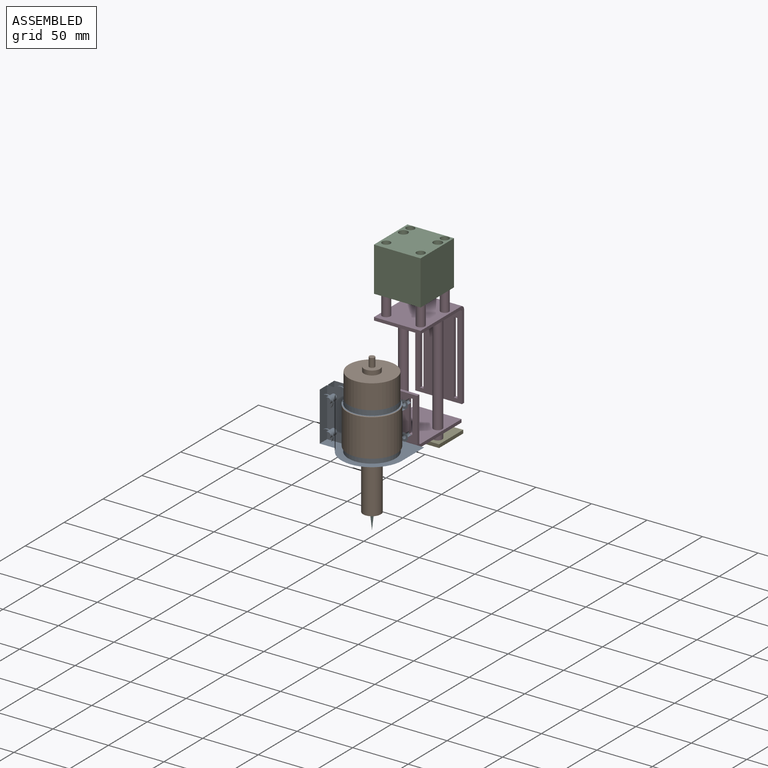
[diagram: assembled view]
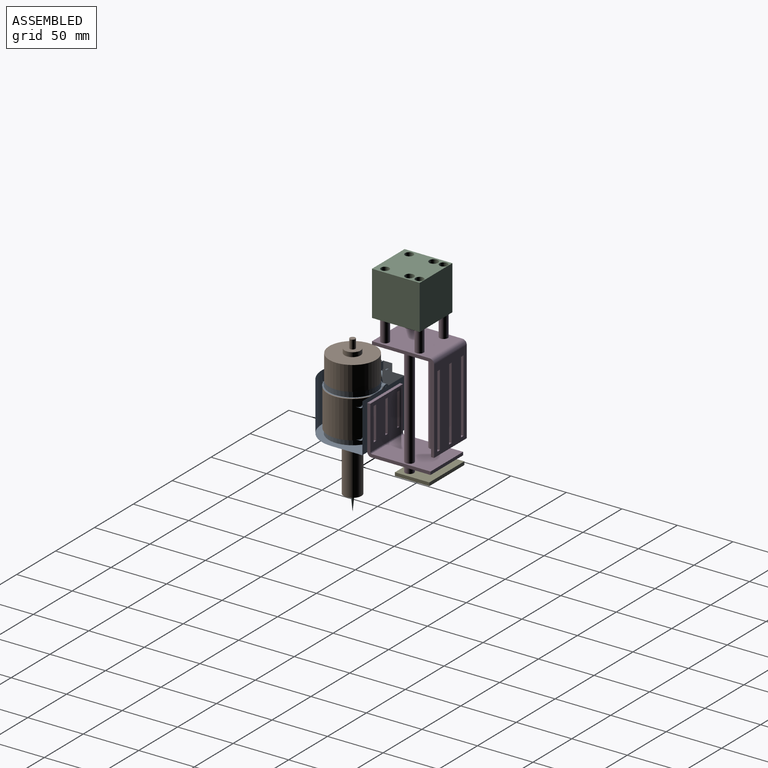
[diagram: assembled view, second angle]
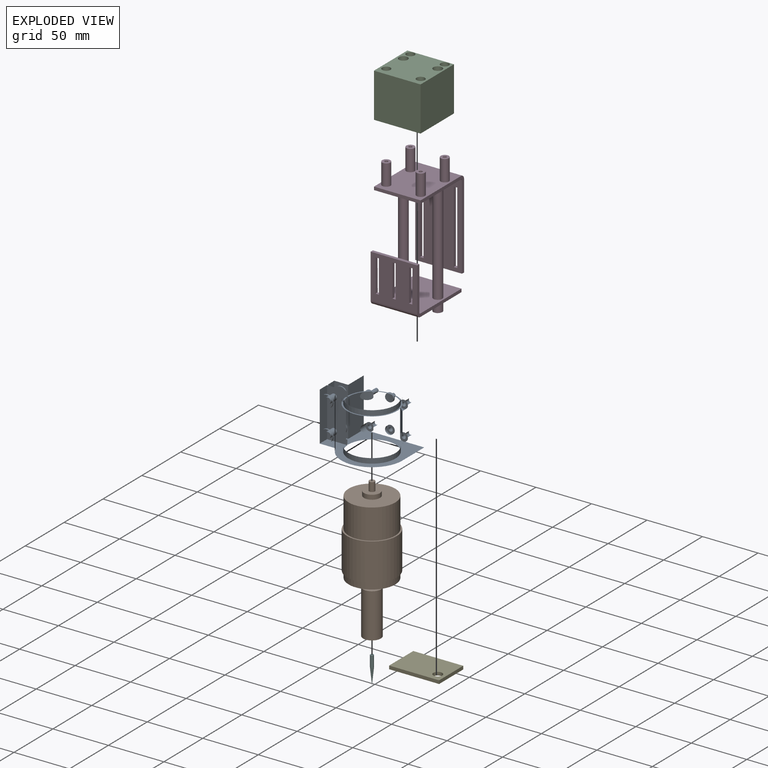
[diagram: exploded view]
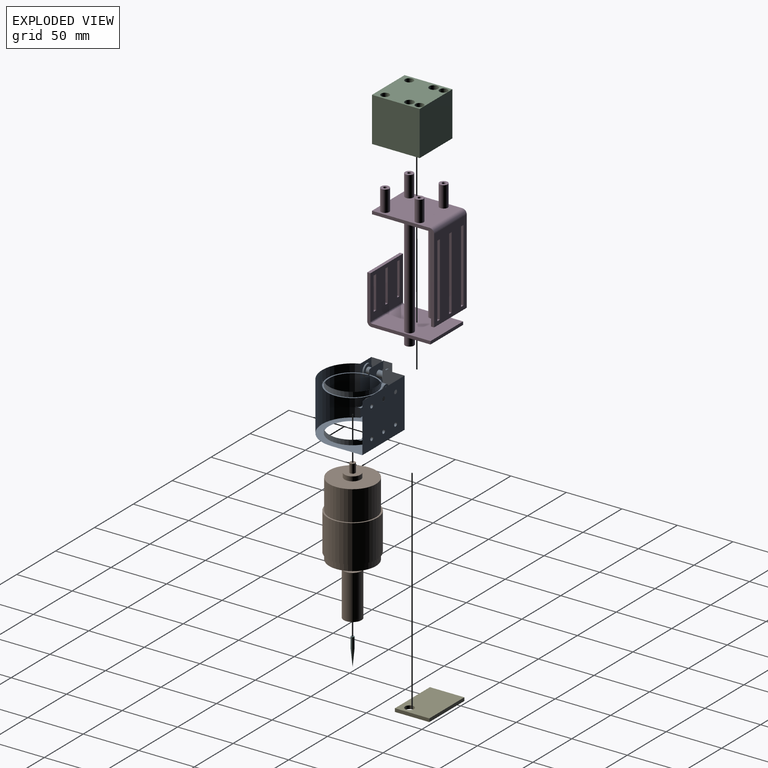
[diagram: exploded view, second angle]
ASSEMBLY  parts=6 mates=5
PART A: 49 faces, bbox 67x55.5x44 mm
  f0: cylinder r=22.5mm len=45mm, axis (0,0,-1), area -4954mm2, adj f1,f2,f3,f4,f5,f6,f7,f8
  f1: plane 7.5x7.05mm, normal (0,1,0), area 33.5mm2, adj f0,f2,f15
  f2: cylinder r=3.75mm len=7.5mm, axis (0,-1,0), area 70.8mm2, adj f0,f1
  f3: plane 7.5x7.05mm, normal (0,1,0), area 33.5mm2, adj f0,f4,f16
  f4: cylinder r=3.75mm len=7.5mm, axis (0,-1,0), area 70.8mm2, adj f0,f3
  f5: cylinder r=3.75mm len=7.5mm, axis (0,-1,0), area 39mm2, adj f0,f17
  f6: cylinder r=3.75mm len=7.5mm, axis (0,-1,0), area 70.7mm2, adj f0,f7
  f7: plane 7.5x7.05mm, normal (0,-1,0), area 33.5mm2, adj f0,f6,f18
  f8: cylinder r=3.75mm len=7.5mm, axis (0,-1,0), area 39mm2, adj f0,f19
  f9: cylinder r=3.75mm len=7.5mm, axis (0,-1,0), area 70.8mm2, adj f0,f10
  f10: plane 7.5x7.05mm, normal (0,1,0), area 33.5mm2, adj f0,f9,f20
  f11: plane 45x45mm, normal (0,0,1), area 170.2mm2, adj f0,f12,f14,f21
  f12: plane 44x18.27mm, normal (0,-1,0), area 712.8mm2, adj f0,f11,f13,f21,f22,f23,f24,f25
  f13: plane 45x45mm, normal (0,0,-1), area 170.2mm2, adj f0,f12,f14,f25
  f14: plane 44x18.31mm, normal (0,1,0), area 714.4mm2, adj f0,f11,f13,f21,f24,f25,f26,f27
  f15: cylinder r=1.75mm len=9mm, axis (0,-1,0), area 99mm2, adj f1,f48
  f16: cylinder r=1.75mm len=9mm, axis (0,-1,0), area 99mm2, adj f3,f48
  f17: plane 7.5x7.5mm, normal (0,1,0), area 34.6mm2, adj f5,f33
  f18: cylinder r=1.75mm len=9mm, axis (0,-1,0), area 99mm2, adj f7,f48
  f19: plane 7.5x7.5mm, normal (0,-1,0), area 34.6mm2, adj f8,f34
  f20: cylinder r=1.75mm len=9mm, axis (0,-1,0), area 99mm2, adj f10,f48
  f21: cylinder r=21.25mm len=42.5mm, axis (0,0,-1), area 595mm2, adj f11,f12,f14,f26
  f22: cylinder r=2.75mm len=7mm, axis (0,-1,0), area 121mm2, adj f12,f35
  f23: cylinder r=2.75mm len=7mm, axis (0,-1,0), area 121mm2, adj f12,f36
  f24: plane 67x55.48mm, normal (0,0,1), area 1507.4mm2, adj f12,f14,f25,f29,f32,f37,f38,f39
  f25: cylinder r=21.25mm len=42.5mm, axis (0,0,-1), area 595mm2, adj f12,f13,f14,f24
  f26: plane 45x45mm, normal (0,0,-1), area 170.2mm2, adj f12,f14,f21,f27
  f27: cylinder r=22.5mm len=45mm, axis (0,0,-1), area 70mm2, adj f12,f14,f26,f28
  f28: plane 67x55.48mm, normal (0,0,-1), area 1337.2mm2, adj f12,f14,f27,f29,f32,f37,f38,f39
  f29: plane 44x8mm, normal (-1,0,0), area 352mm2, adj f12,f24,f28,f40
  f30: cylinder r=2.75mm len=8.21mm, axis (0,-1,0), area 141.8mm2, adj f14,f42
  f31: cylinder r=2.75mm len=8.21mm, axis (0,-1,0), area 141.8mm2, adj f14,f43
  f32: plane 44x9.5mm, normal (-1,0,0), area 418mm2, adj f14,f24,f28,f39
  f33: cylinder r=1.75mm len=4mm, axis (0,-1,0), area 44mm2, adj f17,f48
  f34: cylinder r=1.75mm len=4mm, axis (0,-1,0), area 44mm2, adj f19,f48
  f35: plane 10.75x10.75mm, normal (0,1,0), area 67mm2, adj f22,f44
  f36: plane 10.75x10.75mm, normal (0,1,0), area 67mm2, adj f23,f45
  f37: plane 44x28mm, normal (1,0,0), area 1232mm2, adj f24,f28,f38,f48
  f38: cylinder r=27.48mm len=52.74mm, axis (0,0,-1), area 3309.9mm2, adj f24,f28,f37,f39
  f39: plane 44x14.26mm, normal (0,-1,0), area 445.8mm2, adj f24,f28,f32,f38,f46,f47
  f40: plane 44x12.5mm, normal (0,1,0), area 368.5mm2, adj f24,f28,f29,f41,f44,f45
  f41: plane 44x20mm, normal (-1,0,0), area 880mm2, adj f24,f28,f40,f48
  f42: plane 10.75x10.75mm, normal (0,-1,0), area 67mm2, adj f30,f46
  f43: plane 10.75x10.75mm, normal (0,-1,0), area 67mm2, adj f31,f47
  f44: cylinder r=5.38mm len=10.75mm, axis (0,-1,0), area 33.8mm2, adj f35,f40
  f45: cylinder r=5.38mm len=10.75mm, axis (0,-1,0), area 33.8mm2, adj f36,f40
  f46: cylinder r=5.38mm len=10.75mm, axis (0,-1,0), area 43.7mm2, adj f39,f42
  f47: cylinder r=5.38mm len=10.75mm, axis (0,-1,0), area 43.7mm2, adj f39,f43
  f48: plane 54.5x44mm, normal (0,-1,0), area 2340.3mm2, adj f15,f16,f18,f20,f24,f28,f33,f34
PART B: 19 faces, bbox 44.7x44.7x126.3 mm
  f0: cylinder r=2.5mm len=5mm, axis (0,0,1), area 47.1mm2, adj f13,f17
  f1: cylinder r=21mm len=42mm, axis (0,0,-1), area 3562.6mm2, adj f2,f4
  f2: plane 42x42mm, normal (0,0,1), area 1220.3mm2, adj f1,f8
  f3: cylinder r=22.35mm len=44.7mm, axis (0,0,-1), area 4739.5mm2, adj f4,f5
  f4: plane 44.7x44.7mm, normal (0,0,1), area 183.9mm2, adj f1,f3
  f5: plane 44.7x44.7mm, normal (0,0,-1), area 183.9mm2, adj f3,f7
  f6: plane 42x42mm, normal (0,0,-1), area 1144.9mm2, adj f7,f12
  f7: cylinder r=21mm len=42mm, axis (0,0,-1), area 791.7mm2, adj f5,f6
  f8: cylinder r=7.25mm len=14.5mm, axis (0,0,-1), area 182.2mm2, adj f2,f9
  f9: plane 14.5x14.5mm, normal (0,0,1), area 145.5mm2, adj f8,f10
  f10: cylinder r=2.5mm len=8mm, axis (0,0,-1), area 125.7mm2, adj f9,f11
  f11: plane 5x5mm, normal (0,0,1), area 19.6mm2, adj f10
  f12: cylinder r=8.75mm len=17.5mm, axis (0,0,1), area 247.4mm2, adj f6,f13
  f13: plane 17.5x17.5mm, normal (0,0,-1), area 220.9mm2, adj f0,f12
  f14: cylinder r=2.5mm len=24.2mm, axis (0,0,1), area 380.1mm2, adj f16,f18
  f15: cylinder r=8mm len=40mm, axis (0,0,1), area 2010.6mm2, adj f16,f17
  f16: plane 16x16mm, normal (0,0,-1), area 181.4mm2, adj f14,f15
  f17: plane 16x16mm, normal (0,0,1), area 181.4mm2, adj f0,f15
  f18: plane 5x5mm, normal (0,0,-1), area 19.6mm2, adj f14
PART C: 12 faces, bbox 43x42x40 mm
  f0: plane 42x40mm, normal (1,0,0), area 1680mm2, adj f1,f8,f10,f11
  f1: plane 43x40mm, normal (0,1,0), area 1720mm2, adj f0,f2,f10,f11
  f2: plane 42x40mm, normal (-1,0,0), area 1680mm2, adj f1,f8,f10,f11
  f3: cylinder r=3.7mm len=40mm, axis (0,0,-1), area 929.9mm2, adj f10,f11
  f4: cylinder r=3.7mm len=40mm, axis (0,0,-1), area 929.9mm2, adj f10,f11
  f5: cylinder r=3.7mm len=40mm, axis (0,0,-1), area 929.9mm2, adj f10,f11
  f6: cylinder r=4mm len=40mm, axis (0,0,-1), area 1005.3mm2, adj f10,f11
  f7: cylinder r=4mm len=40mm, axis (0,0,-1), area 1005.3mm2, adj f10,f11
  f8: plane 43x40mm, normal (0,-1,0), area 1720mm2, adj f0,f2,f10,f11
  f9: cylinder r=3.7mm len=40mm, axis (0,0,-1), area 929.9mm2, adj f10,f11
  f10: plane 43x42mm, normal (0,0,1), area 1533.4mm2, adj f0,f1,f2,f3,f4,f5,f6,f7
  f11: plane 43x42mm, normal (0,0,-1), area 1533.4mm2, adj f0,f1,f2,f3,f4,f5,f6,f7
PART D: 62 faces, bbox 60.3x42x121.8 mm
  f0: plane 42x39.5mm, normal (1,0,0), area 1387.6mm2, adj f41,f42,f44,f45,f50,f51,f52,f53
  f1: plane 42x39.5mm, normal (-1,0,0), area 1387.6mm2, adj f42,f43,f44,f45,f50,f51,f52,f53
  f2: cylinder r=4mm len=89.2mm, axis (0,0,1), area 2241.8mm2, adj f8,f40
  f3: cylinder r=4mm len=89.2mm, axis (0,0,1), area 2241.8mm2, adj f8,f40
  f4: plane 76x42mm, normal (-1,0,0), area 2573mm2, adj f9,f10,f12,f13,f14,f15,f16,f17
  f5: plane 76x42mm, normal (1,0,0), area 2573mm2, adj f10,f11,f12,f13,f14,f15,f16,f17
  f6: plane 52x42mm, normal (0,0,1), area 2012mm2, adj f7,f11,f12,f13,f30,f32,f34,f36
  f7: plane 42x2.8mm, normal (-1,0,0), area 117.6mm2, adj f6,f8,f12,f13
  f8: plane 52x42mm, normal (0,0,-1), area 2055.2mm2, adj f2,f3,f7,f9,f12,f13,f26,f27
  f9: cylinder r=1.2mm len=42mm, axis (0,1,0), area 79.2mm2, adj f4,f8,f12,f13
  f10: plane 42x2.8mm, normal (0,0,-1), area 117.6mm2, adj f4,f5,f12,f13
  f11: cylinder r=4mm len=42mm, axis (0,1,0), area 263.9mm2, adj f5,f6,f12,f13
  f12: plane 80x56mm, normal (0,-1,0), area 369.8mm2, adj f4,f5,f6,f7,f8,f9,f10,f11
  f13: plane 80x56mm, normal (0,1,0), area 369.8mm2, adj f4,f5,f6,f7,f8,f9,f10,f11
  f14: plane 65.5x2.8mm, normal (0,-1,0), area 183.4mm2, adj f4,f5,f15,f17
  f15: plane 3.15x2.8mm, normal (0,0,-1), area 8.8mm2, adj f4,f5,f14,f16
  f16: plane 65.5x2.8mm, normal (0,1,0), area 183.4mm2, adj f4,f5,f15,f17
  f17: plane 3.15x2.8mm, normal (0,0,1), area 8.8mm2, adj f4,f5,f14,f16
  f18: plane 3.15x2.8mm, normal (0,0,-1), area 8.8mm2, adj f4,f5,f19,f21
  f19: plane 65.5x2.8mm, normal (0,1,0), area 183.4mm2, adj f4,f5,f18,f20
  f20: plane 3.15x2.8mm, normal (0,0,1), area 8.8mm2, adj f4,f5,f19,f21
  f21: plane 65.5x2.8mm, normal (0,-1,0), area 183.4mm2, adj f4,f5,f18,f20
  f22: plane 65.5x2.8mm, normal (0,1,0), area 183.4mm2, adj f4,f5,f23,f25
  f23: plane 3.15x2.8mm, normal (0,0,1), area 8.8mm2, adj f4,f5,f22,f24
  f24: plane 65.5x2.8mm, normal (0,-1,0), area 183.4mm2, adj f4,f5,f23,f25
  f25: plane 3.15x2.8mm, normal (0,0,-1), area 8.8mm2, adj f4,f5,f22,f24
  f26: cylinder r=1.5mm len=21.8mm, axis (0,0,1), area 205.5mm2, adj f8,f31
  f27: cylinder r=1.5mm len=21.8mm, axis (0,0,1), area 205.5mm2, adj f8,f35
  f28: cylinder r=1.5mm len=21.8mm, axis (0,0,1), area 205.5mm2, adj f8,f37
  f29: cylinder r=1.5mm len=21.8mm, axis (0,0,1), area 205.5mm2, adj f8,f33
  f30: cylinder r=3.7mm len=19mm, axis (0,0,-1), area 441.7mm2, adj f6,f31
  f31: plane 7.4x7.4mm, normal (0,0,1), area 35.9mm2, adj f26,f30
  f32: cylinder r=3.7mm len=19mm, axis (0,0,-1), area 441.7mm2, adj f6,f33
  f33: plane 7.4x7.4mm, normal (0,0,1), area 35.9mm2, adj f29,f32
  f34: cylinder r=3.7mm len=19mm, axis (0,0,-1), area 441.7mm2, adj f6,f35
  f35: plane 7.4x7.4mm, normal (0,0,1), area 35.9mm2, adj f27,f34
  f36: cylinder r=3.7mm len=19mm, axis (0,0,-1), area 441.7mm2, adj f6,f37
  f37: plane 7.4x7.4mm, normal (0,0,1), area 35.9mm2, adj f28,f36
  f38: plane 53x42mm, normal (0,0,-1), area 2125.5mm2, adj f39,f43,f44,f45,f47,f49
  f39: plane 42x2.8mm, normal (1,0,0), area 117.6mm2, adj f38,f40,f44,f45
  f40: plane 53x42mm, normal (0,0,1), area 2125.5mm2, adj f2,f3,f39,f41,f44,f45
  f41: cylinder r=1.2mm len=42mm, axis (0,-1,0), area 79.2mm2, adj f0,f40,f44,f45
  f42: plane 42x2.8mm, normal (0,0,1), area 117.6mm2, adj f0,f1,f44,f45
  f43: cylinder r=4mm len=42mm, axis (0,-1,0), area 263.9mm2, adj f1,f38,f44,f45
  f44: plane 57x43.5mm, normal (0,1,0), area 270.4mm2, adj f0,f1,f38,f39,f40,f41,f42,f43
  f45: plane 57x43.5mm, normal (0,-1,0), area 270.4mm2, adj f0,f1,f38,f39,f40,f41,f42,f43
  f46: plane 8x8mm, normal (0,0,-1), area 50.3mm2, adj f47
  f47: cylinder r=4mm len=8mm, axis (0,0,1), area 201.1mm2, adj f38,f46
  f48: plane 8x8mm, normal (0,0,-1), area 50.3mm2, adj f49
  f49: cylinder r=4mm len=8mm, axis (0,0,1), area 201.1mm2, adj f38,f48
  f50: plane 3.2x2.8mm, normal (0,0,-1), area 9mm2, adj f0,f1,f51,f53
  f51: plane 29.5x2.8mm, normal (0,-1,0), area 82.6mm2, adj f0,f1,f50,f52
  f52: plane 3x2.8mm, normal (0,0,1), area 8.4mm2, adj f0,f1,f51,f53
  f53: plane 29.5x2.8mm, normal (0,1,0.01), area 82.6mm2, adj f0,f1,f50,f52
  f54: plane 3x2.8mm, normal (0,0,-1), area 8.4mm2, adj f0,f1,f55,f57
  f55: plane 29.5x2.8mm, normal (0,-1,0), area 82.6mm2, adj f0,f1,f54,f56
  f56: plane 3x2.8mm, normal (0,0,1), area 8.4mm2, adj f0,f1,f55,f57
  f57: plane 29.5x2.8mm, normal (0,1,0), area 82.6mm2, adj f0,f1,f54,f56
  f58: plane 3.2x2.8mm, normal (0,0,-1), area 9mm2, adj f0,f1,f59,f61
  f59: plane 29.5x2.8mm, normal (0,-1,0.01), area 82.6mm2, adj f0,f1,f58,f60
  f60: plane 3x2.8mm, normal (0,0,1), area 8.4mm2, adj f0,f1,f59,f61
  f61: plane 29.5x2.8mm, normal (0,1,0), area 82.6mm2, adj f0,f1,f58,f60
PART E: 7 faces, bbox 31x45x3 mm
  f0: plane 31x3mm, normal (0,-1,0), area 93mm2, adj f1,f3,f5,f6
  f1: plane 45x3mm, normal (-1,0,0), area 135mm2, adj f0,f2,f5,f6
  f2: plane 31x3mm, normal (0,1,0), area 93mm2, adj f1,f3,f5,f6
  f3: plane 45x3mm, normal (1,0,0), area 135mm2, adj f0,f2,f5,f6
  f4: cylinder r=4mm len=8mm, axis (0,0,1), area 75.4mm2, adj f5,f6
  f5: plane 45x31mm, normal (0,0,-1), area 1344.7mm2, adj f0,f1,f2,f3,f4
  f6: plane 45x31mm, normal (0,0,1), area 1344.7mm2, adj f0,f1,f2,f3,f4
PART F: 3 faces, bbox 3x3x25 mm
  f0: plane 3x3mm, normal (0,0,-1), area 7.1mm2, adj f1
  f1: cylinder r=1.5mm len=10mm, axis (0,0,-1), area 94.2mm2, adj f0,f2
  f2: cone r=0mm half-angle=5.7deg, axis (0,0,-1), area 71mm2, adj f1
PLACE A rot(axis=(0,0,-1),180deg) t=(20.52,16.96,-67.98)mm
PLACE B rot(axis=(0,0,-1),180deg) t=(20.52,16.96,-69.48)mm
PLACE C rot(axis=(0,0,1),90deg) t=(-0.29,49.23,20.77)mm
PLACE D rot(axis=(0,0,1),90deg) t=(-0.29,49.23,20.77)mm
PLACE E rot(axis=(0,0,1),90deg) t=(-0.29,49.23,23.27)mm
PLACE F rot(axis=(0,1,0),180deg) t=(20.52,16.96,-106.98)mm
MATE fastened E.f4 <-> D.f2  axis (0,0,1) through (36.21,79.23,-76.73)mm
MATE fastened A.f48 <-> D.f1  axis (0,-1,0) through (20.78,44.96,-45.98)mm
MATE fastened B.f10 <-> A.f21  axis (0,0,1) through (20.52,16.96,-63.48)mm
MATE fastened C.f9 <-> D.f28  axis (0,0,-1) through (36.21,57.23,42.57)mm
MATE revolute F.f1 <-> B.f15  axis (0,0,1) through (20.52,16.96,-106.98)mm
